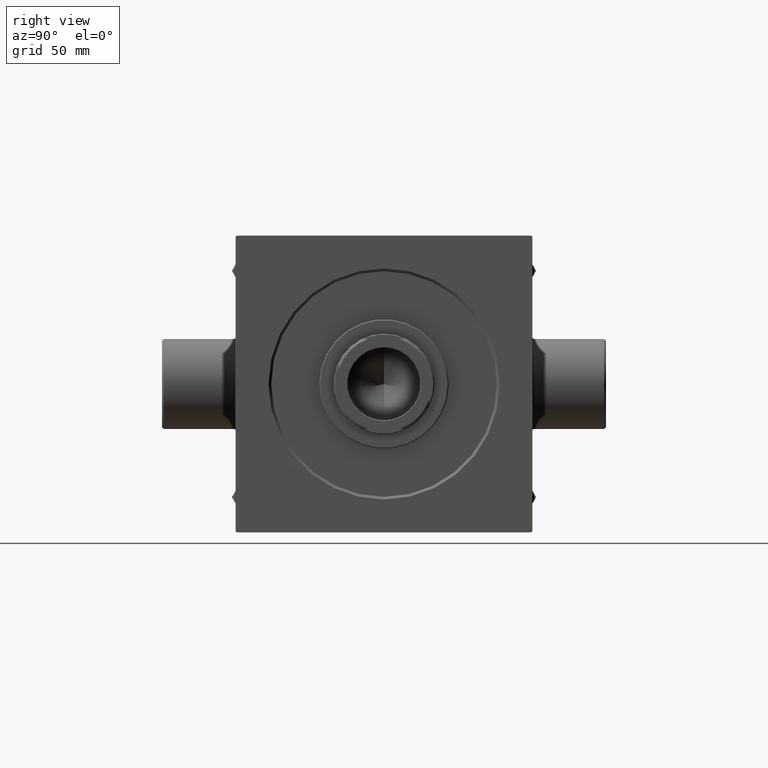
[diagram: clean part render]
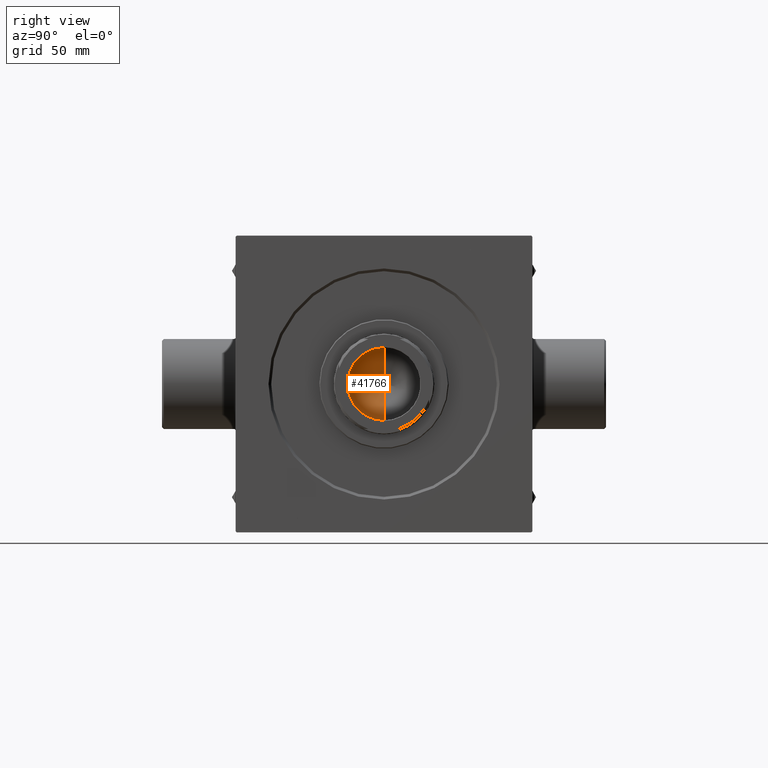
[diagram: same view with one face highlighted and labeled with its STEP entity id]
A machine part, right view. The second image highlights one B-rep face of the part: STEP entity #41766.
In plain terms, the highlighted conical surface has half-angle 59 deg.
Its self-contained STEP definition (entity closure, byte-faithful):
#215 = AXIS2_PLACEMENT_3D ( 'NONE', #2008, #16418, #37766 ) ;
#292 = LINE ( 'NONE', #32930, #43706 ) ;
#2008 = CARTESIAN_POINT ( 'NONE',  ( 0.000000000000000000, 0.000000000000000000, 136.0000000000000000 ) ) ;
#2849 = VECTOR ( 'NONE', #24552, 1000.000000000000000 ) ;
#4167 = EDGE_CURVE ( 'NONE', #13491, #34374, #292, .T. ) ;
#6193 = CIRCLE ( 'NONE', #39496, 20.24999999999998934 ) ;
#6467 = DIRECTION ( 'NONE',  ( -0.000000000000000000, -0.000000000000000000, 1.000000000000000000 ) ) ;
#7100 = EDGE_CURVE ( 'NONE', #13491, #40612, #13901, .T. ) ;
#7766 = ORIENTED_EDGE ( 'NONE', *, *, #35438, .T. ) ;
#8859 = FACE_OUTER_BOUND ( 'NONE', #20728, .T. ) ;
#11595 = DIRECTION ( 'NONE',  ( -0.8571673007021115565, 1.049727191138617710E-16, 0.5150380749100554878 ) ) ;
#11677 = CARTESIAN_POINT ( 'NONE',  ( 20.24999999999998934, 0.000000000000000000, 136.0000000000000000 ) ) ;
#13491 = VERTEX_POINT ( 'NONE', #34637 ) ;
#13901 = LINE ( 'NONE', #31199, #2849 ) ;
#16418 = DIRECTION ( 'NONE',  ( -0.000000000000000000, -0.000000000000000000, 1.000000000000000000 ) ) ;
#20605 = CONICAL_SURFACE ( 'NONE', #215, 20.24999999999998934, 1.029744258676652979 ) ;
#20728 = EDGE_LOOP ( 'NONE', ( #46281, #37583, #7766 ) ) ;
#22097 = CARTESIAN_POINT ( 'NONE',  ( -20.24999999999998934, 2.479909768273389117E-15, 136.0000000000000000 ) ) ;
#24552 = DIRECTION ( 'NONE',  ( 0.8571673007021115565, 0.000000000000000000, 0.5150380749100554878 ) ) ;
#31199 = CARTESIAN_POINT ( 'NONE',  ( 20.24999999999998934, 0.000000000000000000, 136.0000000000000000 ) ) ;
#31792 = DIRECTION ( 'NONE',  ( 1.000000000000000000, 0.000000000000000000, 0.000000000000000000 ) ) ;
#32930 = CARTESIAN_POINT ( 'NONE',  ( -20.24999999999998934, 2.479909768273389117E-15, 136.0000000000000000 ) ) ;
#34374 = VERTEX_POINT ( 'NONE', #22097 ) ;
#34637 = CARTESIAN_POINT ( 'NONE',  ( -1.584115414415908206E-14, 0.000000000000000000, 123.8325724646918786 ) ) ;
#35438 = EDGE_CURVE ( 'NONE', #40612, #34374, #6193, .T. ) ;
#37583 = ORIENTED_EDGE ( 'NONE', *, *, #7100, .T. ) ;
#37766 = DIRECTION ( 'NONE',  ( 1.000000000000000000, 0.000000000000000000, 0.000000000000000000 ) ) ;
#38927 = CARTESIAN_POINT ( 'NONE',  ( 0.000000000000000000, 0.000000000000000000, 136.0000000000000000 ) ) ;
#39496 = AXIS2_PLACEMENT_3D ( 'NONE', #38927, #6467, #31792 ) ;
#40612 = VERTEX_POINT ( 'NONE', #11677 ) ;
#41766 = ADVANCED_FACE ( 'NONE', ( #8859 ), #20605, .F. ) ;
#43706 = VECTOR ( 'NONE', #11595, 1000.000000000000000 ) ;
#46281 = ORIENTED_EDGE ( 'NONE', *, *, #4167, .F. ) ;